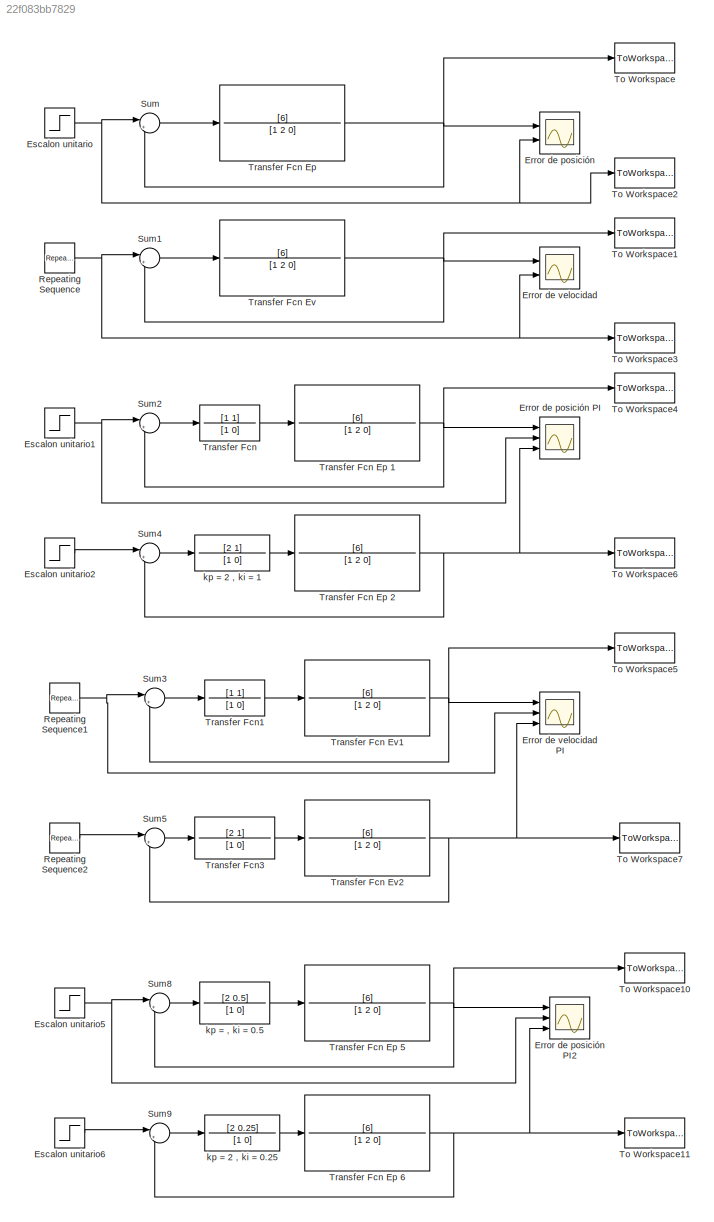
MODEL slx_22f083bb7829
KIND model
CONFIG AbsTol = auto
CONFIG EnableMultiTasking = off
CONFIG FixedStep = auto
CONFIG MaxStep = auto
CONFIG MinStep = auto
CONFIG RelTol = 1e-3
CONFIG SampleTimeConstraint = Unconstrained
CONFIG Solver = VariableStepAuto
CONFIG SolverName = VariableStepAuto
CONFIG StartTime = 0.0
CONFIG StopTime = 20.0
BLOCK [Scope] Error de posición
  Floating = off
  NumInputPorts = 2
  Ports = [2]
  ScopeSpecificationString = Simulink.scopes.TimeScopeBlockCfg('CurrentConfiguration', extmgr.ConfigurationSet(extmgr.Configuration('Core','General UI',true),extmgr.Configuration('Core','Source UI',true),extmgr.Configuration('Sources','WiredSimulink',true),extmgr.Configuration('Visuals','Time Domain',true,'SerializedDisplays',{struct('MinYLimReal','-0.15567','MaxYLimReal','1.40103','YLabelReal','Signal Value','MinYLimMag','0....<+1504ch>
BLOCK [Scope] Error de posición PI
  Floating = off
  NumInputPorts = 3
  Ports = [3]
  ScopeSpecificationString = Simulink.scopes.TimeScopeBlockCfg('CurrentConfiguration', extmgr.ConfigurationSet(extmgr.Configuration('Core','General UI',true),extmgr.Configuration('Core','Source UI',true),extmgr.Configuration('Sources','WiredSimulink',true,'DataLoggingVariableName','ScopeData2'),extmgr.Configuration('Visuals','Time Domain',true,'SerializedDisplays',{struct('MinYLimReal','-0.21213','MaxYLimReal','1.90914','YLab...<+1515ch>
BLOCK [Scope] Error de posición PI2
  Floating = off
  NumInputPorts = 3
  Ports = [3]
  ScopeSpecificationString = Simulink.scopes.TimeScopeBlockCfg('CurrentConfiguration', extmgr.ConfigurationSet(extmgr.Configuration('Core','General UI',true),extmgr.Configuration('Core','Source UI',true),extmgr.Configuration('Sources','WiredSimulink',true,'DataLoggingVariableName','ScopeData2'),extmgr.Configuration('Visuals','Time Domain',true,'SerializedDisplays',{struct('MinYLimReal','-0.21213','MaxYLimReal','1.90914','YLab...<+1515ch>
BLOCK [Scope] Error de velocidad 
  Floating = off
  NumInputPorts = 2
  Ports = [2]
  ScopeSpecificationString = Simulink.scopes.TimeScopeBlockCfg('CurrentConfiguration', extmgr.ConfigurationSet(extmgr.Configuration('Core','General UI',true),extmgr.Configuration('Core','Source UI',true),extmgr.Configuration('Sources','WiredSimulink',true,'DataLoggingVariableName','ScopeData1'),extmgr.Configuration('Visuals','Time Domain',true,'SerializedDisplays',{struct('MinYLimReal','-2.4975','MaxYLimReal','22.4775','YLabe...<+1466ch>
BLOCK [Scope] Error de velocidad PI
  Floating = off
  NumInputPorts = 3
  Ports = [3]
  ScopeSpecificationString = Simulink.scopes.TimeScopeBlockCfg('CurrentConfiguration', extmgr.ConfigurationSet(extmgr.Configuration('Core','General UI',true),extmgr.Configuration('Core','Source UI',true),extmgr.Configuration('Sources','WiredSimulink',true,'DataLoggingVariableName','ScopeData4'),extmgr.Configuration('Visuals','Time Domain',true,'SerializedDisplays',{struct('MinYLimReal','-0.21213','MaxYLimReal','1.90914','YLab...<+1482ch>
BLOCK [Step] Escalon unitario
  SampleTime = 0.01
BLOCK [Step] Escalon unitario1
  SampleTime = 0.01
BLOCK [Step] Escalon unitario2
  SampleTime = 0.01
BLOCK [Step] Escalon unitario5
  SampleTime = 0.01
BLOCK [Step] Escalon unitario6
  SampleTime = 0.01
BLOCK [Reference] Repeating Sequence  REF=simulink/Sources/Repeating
Sequence
  Ports = [0, 1]
  SourceBlock = simulink/Sources/Repeating\nSequence
  SourceProductBaseCode = SL
  SourceProductName = Simulink
  SourceType = Repeating table
BLOCK [Reference] Repeating Sequence1  REF=simulink/Sources/Repeating
Sequence
  Ports = [0, 1]
  SourceBlock = simulink/Sources/Repeating\nSequence
  SourceProductBaseCode = SL
  SourceProductName = Simulink
  SourceType = Repeating table
BLOCK [Reference] Repeating Sequence2  REF=simulink/Sources/Repeating
Sequence
  Ports = [0, 1]
  SourceBlock = simulink/Sources/Repeating\nSequence
  SourceProductBaseCode = SL
  SourceProductName = Simulink
  SourceType = Repeating table
BLOCK [Sum] Sum
  IconShape = round
  InputSameDT = off
  Inputs = |+-
  OutDataTypeStr = Inherit: Inherit via internal rule
  Ports = [2, 1]
  SaturateOnIntegerOverflow = off
BLOCK [Sum] Sum1
  IconShape = round
  InputSameDT = off
  Inputs = |+-
  OutDataTypeStr = Inherit: Inherit via internal rule
  Ports = [2, 1]
  SaturateOnIntegerOverflow = off
BLOCK [Sum] Sum2
  IconShape = round
  InputSameDT = off
  Inputs = |+-
  OutDataTypeStr = Inherit: Inherit via internal rule
  Ports = [2, 1]
  SaturateOnIntegerOverflow = off
BLOCK [Sum] Sum3
  IconShape = round
  InputSameDT = off
  Inputs = |+-
  OutDataTypeStr = Inherit: Inherit via internal rule
  Ports = [2, 1]
  SaturateOnIntegerOverflow = off
BLOCK [Sum] Sum4
  IconShape = round
  InputSameDT = off
  Inputs = |+-
  OutDataTypeStr = Inherit: Inherit via internal rule
  Ports = [2, 1]
  SaturateOnIntegerOverflow = off
BLOCK [Sum] Sum5
  IconShape = round
  InputSameDT = off
  Inputs = |+-
  OutDataTypeStr = Inherit: Inherit via internal rule
  Ports = [2, 1]
  SaturateOnIntegerOverflow = off
BLOCK [Sum] Sum8
  IconShape = round
  InputSameDT = off
  Inputs = |+-
  OutDataTypeStr = Inherit: Inherit via internal rule
  Ports = [2, 1]
  SaturateOnIntegerOverflow = off
BLOCK [Sum] Sum9
  IconShape = round
  InputSameDT = off
  Inputs = |+-
  OutDataTypeStr = Inherit: Inherit via internal rule
  Ports = [2, 1]
  SaturateOnIntegerOverflow = off
BLOCK [ToWorkspace] To Workspace
  FixptAsFi = on
  MaxDataPoints = inf
  Ports = [1]
  SampleTime = 0.01
  Save2DSignal = 3-D array (concatenate along third dimension)
  VariableName = erpos
BLOCK [ToWorkspace] To Workspace1
  FixptAsFi = on
  MaxDataPoints = inf
  Ports = [1]
  SampleTime = 0.01
  Save2DSignal = 3-D array (concatenate along third dimension)
  VariableName = ervel
BLOCK [ToWorkspace] To Workspace10
  FixptAsFi = on
  MaxDataPoints = inf
  Ports = [1]
  SampleTime = 0.01
  Save2DSignal = 3-D array (concatenate along third dimension)
  VariableName = erposPI2
BLOCK [ToWorkspace] To Workspace11
  FixptAsFi = on
  MaxDataPoints = inf
  Ports = [1]
  SampleTime = 0.01
  Save2DSignal = 3-D array (concatenate along third dimension)
  VariableName = erposPI3
BLOCK [ToWorkspace] To Workspace2
  FixptAsFi = on
  MaxDataPoints = inf
  Ports = [1]
  SampleTime = 0.01
  Save2DSignal = 3-D array (concatenate along third dimension)
  VariableName = stepSignal
BLOCK [ToWorkspace] To Workspace3
  FixptAsFi = on
  MaxDataPoints = inf
  Ports = [1]
  SampleTime = 0.01
  Save2DSignal = 3-D array (concatenate along third dimension)
  VariableName = rampSignal
BLOCK [ToWorkspace] To Workspace4
  FixptAsFi = on
  MaxDataPoints = inf
  Ports = [1]
  SampleTime = 0.01
  Save2DSignal = 3-D array (concatenate along third dimension)
  VariableName = erposPI
BLOCK [ToWorkspace] To Workspace5
  FixptAsFi = on
  MaxDataPoints = inf
  Ports = [1]
  SampleTime = 0.01
  Save2DSignal = 3-D array (concatenate along third dimension)
  VariableName = ervelPI
BLOCK [ToWorkspace] To Workspace6
  FixptAsFi = on
  MaxDataPoints = inf
  Ports = [1]
  SampleTime = 0.01
  Save2DSignal = 3-D array (concatenate along third dimension)
  VariableName = erposPI1
BLOCK [ToWorkspace] To Workspace7
  FixptAsFi = on
  MaxDataPoints = inf
  Ports = [1]
  SampleTime = 0.01
  Save2DSignal = 3-D array (concatenate along third dimension)
  VariableName = ervelPI1
BLOCK [TransferFcn] Transfer Fcn
  Denominator = [1 0]
  Numerator = [1 1]
BLOCK [TransferFcn] Transfer Fcn Ep 
  Denominator = [1 2 0]
  Numerator = [6]
BLOCK [TransferFcn] Transfer Fcn Ep 1
  Denominator = [1 2 0]
  Numerator = [6]
BLOCK [TransferFcn] Transfer Fcn Ep 2
  Denominator = [1 2 0]
  Numerator = [6]
BLOCK [TransferFcn] Transfer Fcn Ep 5
  Denominator = [1 2 0]
  Numerator = [6]
BLOCK [TransferFcn] Transfer Fcn Ep 6
  Denominator = [1 2 0]
  Numerator = [6]
BLOCK [TransferFcn] Transfer Fcn Ev
  Denominator = [1 2 0]
  Numerator = [6]
BLOCK [TransferFcn] Transfer Fcn Ev1
  Denominator = [1 2 0]
  Numerator = [6]
BLOCK [TransferFcn] Transfer Fcn Ev2
  Denominator = [1 2 0]
  Numerator = [6]
BLOCK [TransferFcn] Transfer Fcn1
  Denominator = [1 0]
  Numerator = [1 1]
BLOCK [TransferFcn] Transfer Fcn3
  Denominator = [1 0]
  Numerator = [2 1]
BLOCK [TransferFcn] kp = , ki = 0.5 
  Denominator = [1 0]
  Numerator = [2 0.5]
BLOCK [TransferFcn] kp = 2 , ki = 0.25
  Denominator = [1 0]
  Numerator = [2 0.25]
BLOCK [TransferFcn] kp = 2 , ki = 1 
  Denominator = [1 0]
  Numerator = [2 1]
NET Escalon unitario1:1 -> Error de posición PI:2, Sum2:1
LINE Escalon unitario2:1 -> Sum4:1
NET Escalon unitario5:1 -> Error de posición PI2:2, Sum8:1
LINE Escalon unitario6:1 -> Sum9:1
NET Escalon unitario:1 -> Error de posición:2, Sum:1, To Workspace2:1
NET Repeating Sequence1:1 -> Error de velocidad PI:2, Sum3:1
LINE Repeating Sequence2:1 -> Sum5:1
NET Repeating Sequence:1 -> Error de velocidad :2, Sum1:1, To Workspace3:1
LINE Sum1:1 -> Transfer Fcn Ev:1
LINE Sum2:1 -> Transfer Fcn:1
LINE Sum3:1 -> Transfer Fcn1:1
LINE Sum4:1 -> kp = 2 , ki = 1 :1
LINE Sum5:1 -> Transfer Fcn3:1
LINE Sum8:1 -> kp = , ki = 0.5 :1
LINE Sum9:1 -> kp = 2 , ki = 0.25:1
LINE Sum:1 -> Transfer Fcn Ep :1
NET Transfer Fcn Ep 1:1 -> Error de posición PI:1, Sum2:2, To Workspace4:1
NET Transfer Fcn Ep 2:1 -> Error de posición PI:3, Sum4:2, To Workspace6:1
NET Transfer Fcn Ep 5:1 -> Error de posición PI2:1, Sum8:2, To Workspace10:1
NET Transfer Fcn Ep 6:1 -> Error de posición PI2:3, Sum9:2, To Workspace11:1
NET Transfer Fcn Ep :1 -> Error de posición:1, Sum:2, To Workspace:1
NET Transfer Fcn Ev1:1 -> Error de velocidad PI:1, Sum3:2, To Workspace5:1
NET Transfer Fcn Ev2:1 -> Error de velocidad PI:3, Sum5:2, To Workspace7:1
NET Transfer Fcn Ev:1 -> Error de velocidad :1, Sum1:2, To Workspace1:1
LINE Transfer Fcn1:1 -> Transfer Fcn Ev1:1
LINE Transfer Fcn3:1 -> Transfer Fcn Ev2:1
LINE Transfer Fcn:1 -> Transfer Fcn Ep 1:1
LINE kp = , ki = 0.5 :1 -> Transfer Fcn Ep 5:1
LINE kp = 2 , ki = 0.25:1 -> Transfer Fcn Ep 6:1
LINE kp = 2 , ki = 1 :1 -> Transfer Fcn Ep 2:1
note: NET lines group one-source signal fan-out (src -> all destinations, sorted); 1:1 wires keep LINE
